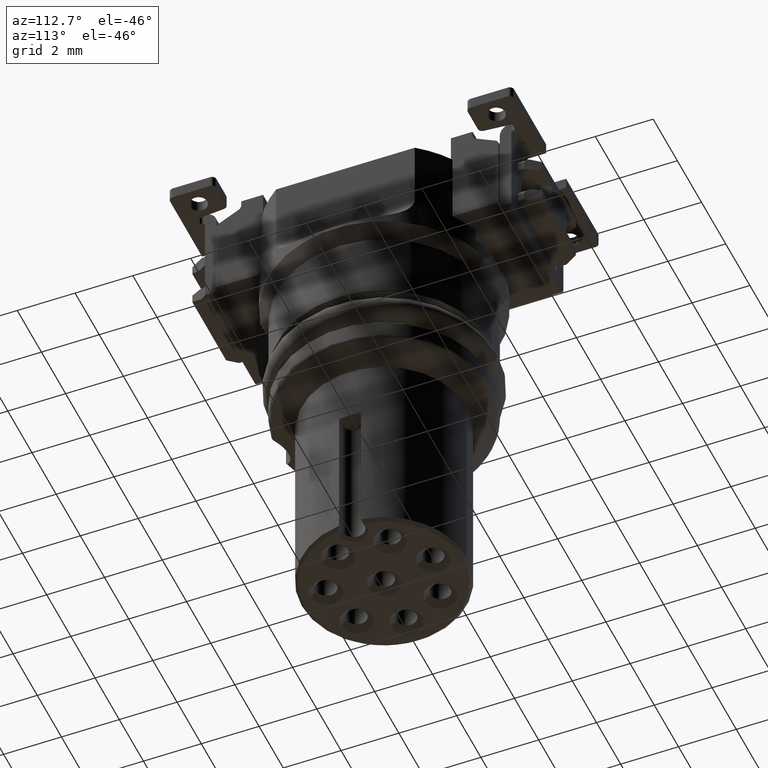
[diagram: clean part render]
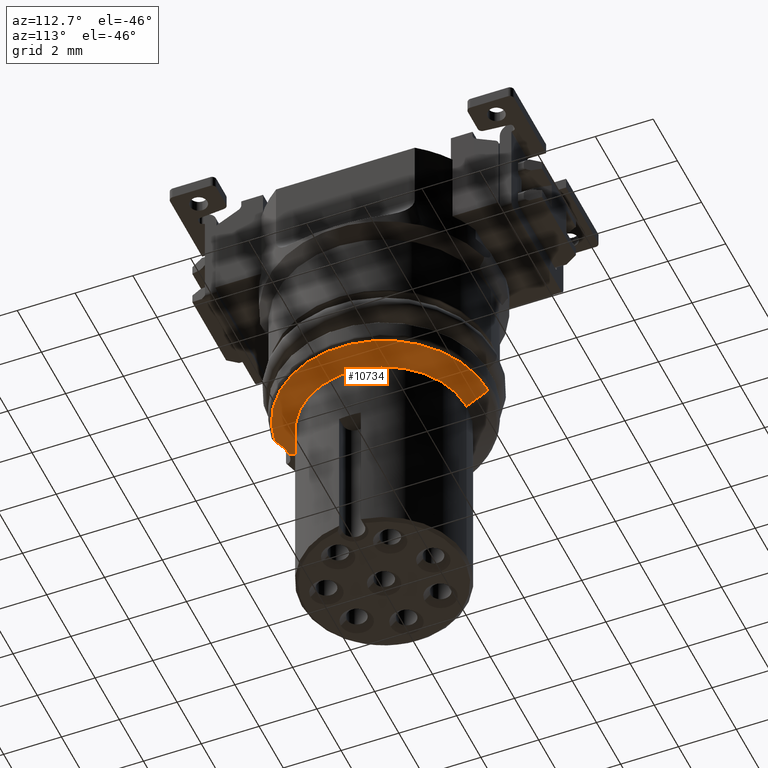
[diagram: same view with one face highlighted and labeled with its STEP entity id]
A machine part, auxiliary view. The second image highlights one B-rep face of the part: STEP entity #10734.
In plain terms, the highlighted conical surface has half-angle 60 deg.
Its self-contained STEP definition (entity closure, byte-faithful):
#2848=CARTESIAN_POINT('',(5.434136890988E-1,-3.55875E0,-9.566987298108E0));
#2849=CARTESIAN_POINT('',(5.222582142187E-1,-3.532696346404E0,
-9.583700724682E0));
#2850=CARTESIAN_POINT('',(4.772432461094E-1,-3.484960413629E0,
-9.614726968461E0));
#2851=CARTESIAN_POINT('',(4.050416373591E-1,-3.426684043501E0,
-9.653406456813E0));
#2852=CARTESIAN_POINT('',(3.286957301823E-1,-3.379890954971E0,
-9.685014055630E0));
#2853=CARTESIAN_POINT('',(2.496433297848E-1,-3.344143499761E0,
-9.709508923350E0));
#2854=CARTESIAN_POINT('',(1.677403097325E-1,-3.318621414281E0,
-9.727188224069E0));
#2855=CARTESIAN_POINT('',(8.449310829499E-2,-3.303408280798E0,
-9.737805057957E0));
#2856=CARTESIAN_POINT('',(2.812787131986E-2,-3.3E0,-9.740192378865E0));
#2857=CARTESIAN_POINT('',(0.E0,-3.3E0,-9.740192378865E0));
#2859=CARTESIAN_POINT('',(0.E0,0.E0,-9.566987298108E0));
#2860=DIRECTION('',(0.E0,0.E0,-1.E0));
#2861=DIRECTION('',(0.E0,1.E0,0.E0));
#2862=AXIS2_PLACEMENT_3D('',#2859,#2860,#2861);
#2934=DIRECTION('',(0.E0,8.660254037844E-1,-5.E-1));
#2935=VECTOR('',#2934,5.196152422707E-1);
#2936=CARTESIAN_POINT('',(0.E0,-3.3E0,-9.740192378865E0));
#2937=LINE('',#2936,#2935);
#2938=DIRECTION('',(6.250769429443E-13,-8.660254037844E-1,-5.E-1));
#2939=VECTOR('',#2938,8.660254037827E-1);
#2940=CARTESIAN_POINT('',(-5.416815362464E-13,3.599999999998E0,
-9.566987298109E0));
#2941=LINE('',#2940,#2939);
#3001=CARTESIAN_POINT('',(0.E0,0.E0,-1.E1));
#3002=DIRECTION('',(0.E0,0.E0,1.E0));
#3003=DIRECTION('',(0.E0,-1.E0,0.E0));
#3004=AXIS2_PLACEMENT_3D('',#3001,#3002,#3003);
#5599=CARTESIAN_POINT('',(0.E0,-2.85E0,-1.E1));
#5600=CARTESIAN_POINT('',(0.E0,2.85E0,-1.E1));
#5601=VERTEX_POINT('',#5599);
#5602=VERTEX_POINT('',#5600);
#5931=CARTESIAN_POINT('',(-5.416815362464E-13,3.599999999998E0,
-9.566987298109E0));
#5932=VERTEX_POINT('',#5931);
#6163=VERTEX_POINT('',#2848);
#6164=VERTEX_POINT('',#2857);
#10718=CARTESIAN_POINT('',(0.E0,0.E0,-9.783493649054E0));
#10719=DIRECTION('',(0.E0,0.E0,1.E0));
#10720=DIRECTION('',(0.E0,1.E0,0.E0));
#10721=AXIS2_PLACEMENT_3D('',#10718,#10719,#10720);
#10722=CONICAL_SURFACE('',#10721,3.225E0,6.E1);
#10723=ORIENTED_EDGE('',*,*,#10698,.F.);
#10725=ORIENTED_EDGE('',*,*,#10724,.F.);
#10727=ORIENTED_EDGE('',*,*,#10726,.T.);
#10729=ORIENTED_EDGE('',*,*,#10728,.F.);
#10731=ORIENTED_EDGE('',*,*,#10730,.F.);
#10732=EDGE_LOOP('',(#10723,#10725,#10727,#10729,#10731));
#10733=FACE_OUTER_BOUND('',#10732,.F.);
#2858=B_SPLINE_CURVE_WITH_KNOTS('',3,(#2848,#2849,#2850,#2851,#2852,#2853,#2854,
#2855,#2856,#2857),.UNSPECIFIED.,.F.,.F.,(4,1,1,1,1,1,1,4),(0.E0,
1.428571428571E-1,2.857142857143E-1,4.285714285714E-1,5.714285714286E-1,
7.142857142857E-1,8.571428571429E-1,1.E0),.UNSPECIFIED.);
#2863=CIRCLE('',#2862,3.6E0);
#3005=CIRCLE('',#3004,2.85E0);
#10698=EDGE_CURVE('',#6163,#6164,#2858,.T.);
#10724=EDGE_CURVE('',#5932,#6163,#2863,.T.);
#10726=EDGE_CURVE('',#5932,#5602,#2941,.T.);
#10728=EDGE_CURVE('',#5601,#5602,#3005,.T.);
#10730=EDGE_CURVE('',#6164,#5601,#2937,.T.);
#10734=ADVANCED_FACE('',(#10733),#10722,.T.);